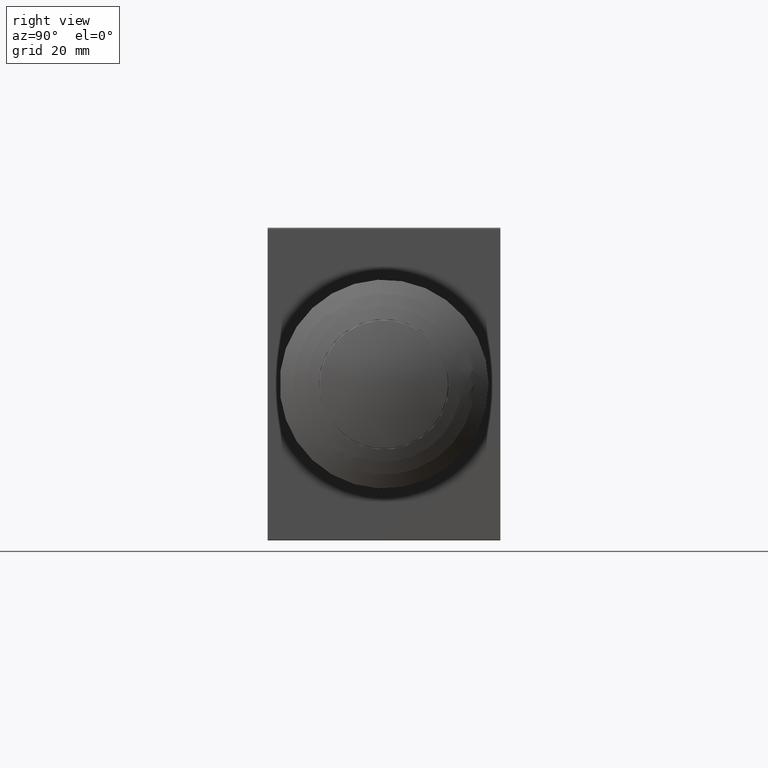
[diagram: clean part render]
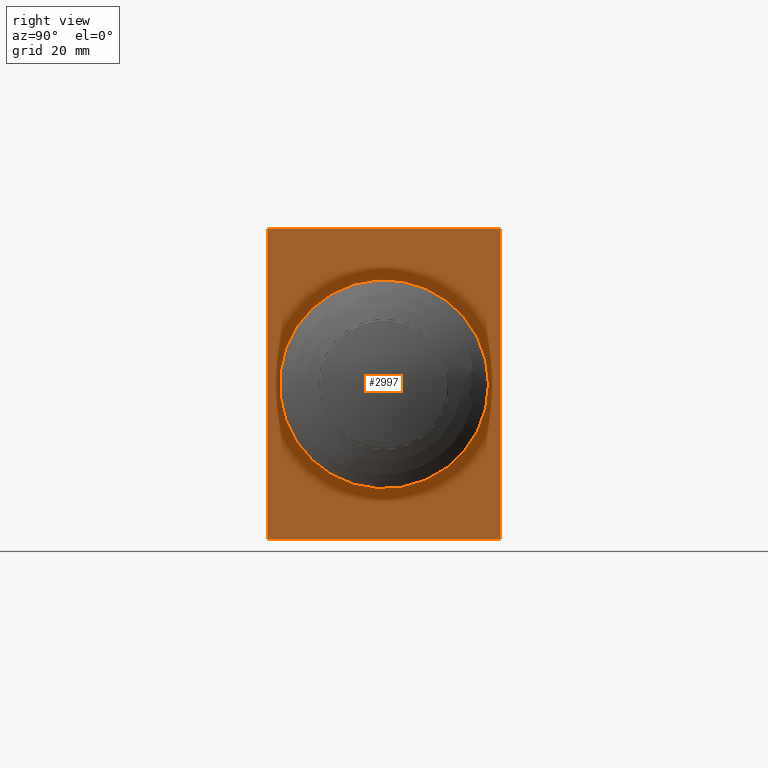
[diagram: same view with one face highlighted and labeled with its STEP entity id]
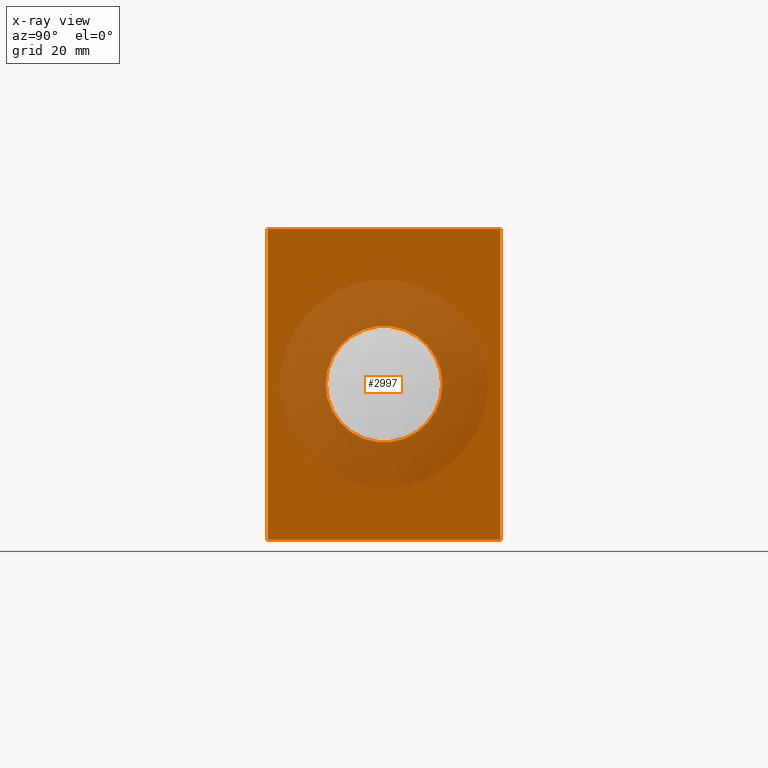
[diagram: x-ray of the same camera — body ghosted, the highlighted face saturated]
A machine part, right view. The second image highlights one B-rep face of the part: STEP entity #2997.
The next image is the same camera in x-ray: the body ghosted, the highlighted face saturated — about 38% of this face is hidden behind the body in this view.
In plain terms, the highlighted planar face has unit normal (1, -0, 0).
Its self-contained STEP definition (entity closure, byte-faithful):
#2902=CARTESIAN_POINT('',(-12.704183619849175,-32.725398273954283,11.250000000000000));
#2903=VERTEX_POINT('',#2902);
#2904=CARTESIAN_POINT('',(-12.704183619849179,-32.725398273954283,22.500000000000000));
#2905=DIRECTION('',(-1.0,0.0,0.0));
#2906=DIRECTION('',(0.0,0.0,1.0));
#2907=AXIS2_PLACEMENT_3D('',#2904,#2905,#2906);
#2908=CIRCLE('',#2907,11.250000000000000);
#2909=EDGE_CURVE('',#2903,#2903,#2908,.T.);
#2927=CARTESIAN_POINT('',(-12.704183619849179,-2.725398273954287,45.0));
#2928=VERTEX_POINT('',#2927);
#2937=CARTESIAN_POINT('',(-12.704183619849179,-2.725398273954287,0.0));
#2938=VERTEX_POINT('',#2937);
#2939=CARTESIAN_POINT('',(-12.704183619849179,-2.725398273954287,0.0));
#2940=DIRECTION('',(0.0,0.0,1.0));
#2941=VECTOR('',#2940,45.0);
#2942=LINE('',#2939,#2941);
#2943=EDGE_CURVE('',#2938,#2928,#2942,.T.);
#2964=CARTESIAN_POINT('',(-12.704183619849179,-2.725398273954287,0.0));
#2965=DIRECTION('',(1.0,0.0,0.0));
#2966=DIRECTION('',(0.0,0.0,-1.0));
#2967=AXIS2_PLACEMENT_3D('',#2964,#2965,#2966);
#2968=PLANE('',#2967);
#2969=CARTESIAN_POINT('',(-12.704183619849172,-62.725398273954283,45.0));
#2970=VERTEX_POINT('',#2969);
#2971=CARTESIAN_POINT('',(-12.704183619849179,-2.725398273954287,45.0));
#2972=DIRECTION('',(0.0,-1.0,0.0));
#2973=VECTOR('',#2972,60.0);
#2974=LINE('',#2971,#2973);
#2975=EDGE_CURVE('',#2928,#2970,#2974,.T.);
#2976=ORIENTED_EDGE('',*,*,#2975,.T.);
#2977=CARTESIAN_POINT('',(-12.704183619849172,-62.725398273954283,0.0));
#2978=VERTEX_POINT('',#2977);
#2979=CARTESIAN_POINT('',(-12.704183619849172,-62.725398273954283,0.0));
#2980=DIRECTION('',(0.0,0.0,1.0));
#2981=VECTOR('',#2980,45.0);
#2982=LINE('',#2979,#2981);
#2983=EDGE_CURVE('',#2978,#2970,#2982,.T.);
#2984=ORIENTED_EDGE('',*,*,#2983,.F.);
#2985=CARTESIAN_POINT('',(-12.704183619849172,-62.725398273954283,0.0));
#2986=DIRECTION('',(0.0,1.0,0.0));
#2987=VECTOR('',#2986,60.0);
#2988=LINE('',#2985,#2987);
#2989=EDGE_CURVE('',#2978,#2938,#2988,.T.);
#2990=ORIENTED_EDGE('',*,*,#2989,.T.);
#2991=ORIENTED_EDGE('',*,*,#2943,.T.);
#2992=EDGE_LOOP('',(#2976,#2984,#2990,#2991));
#2993=FACE_OUTER_BOUND('',#2992,.T.);
#2994=ORIENTED_EDGE('',*,*,#2909,.T.);
#2995=EDGE_LOOP('',(#2994));
#2996=FACE_BOUND('',#2995,.T.);
#2997=ADVANCED_FACE('',(#2993,#2996),#2968,.T.);